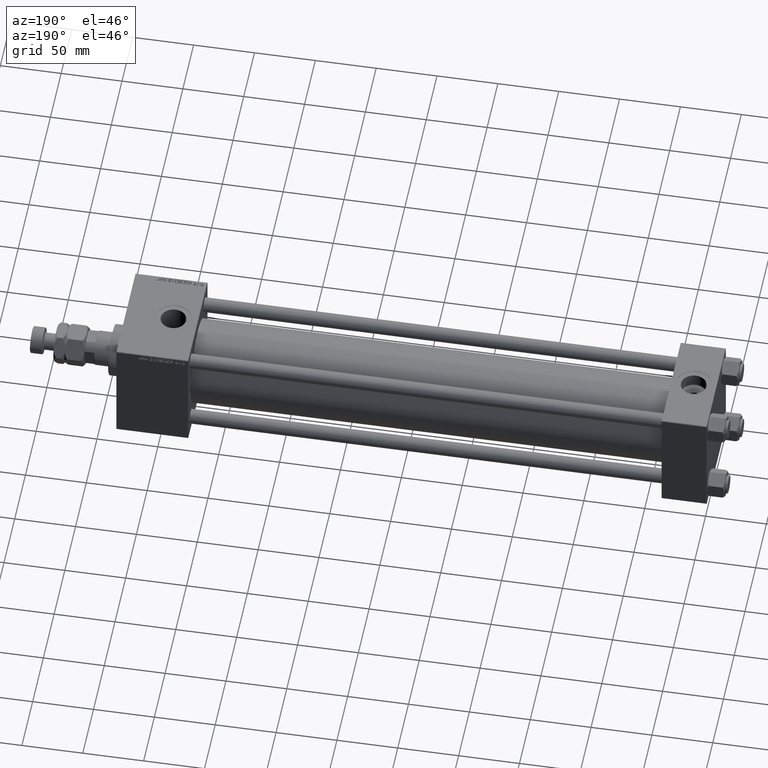
[diagram: clean part render]
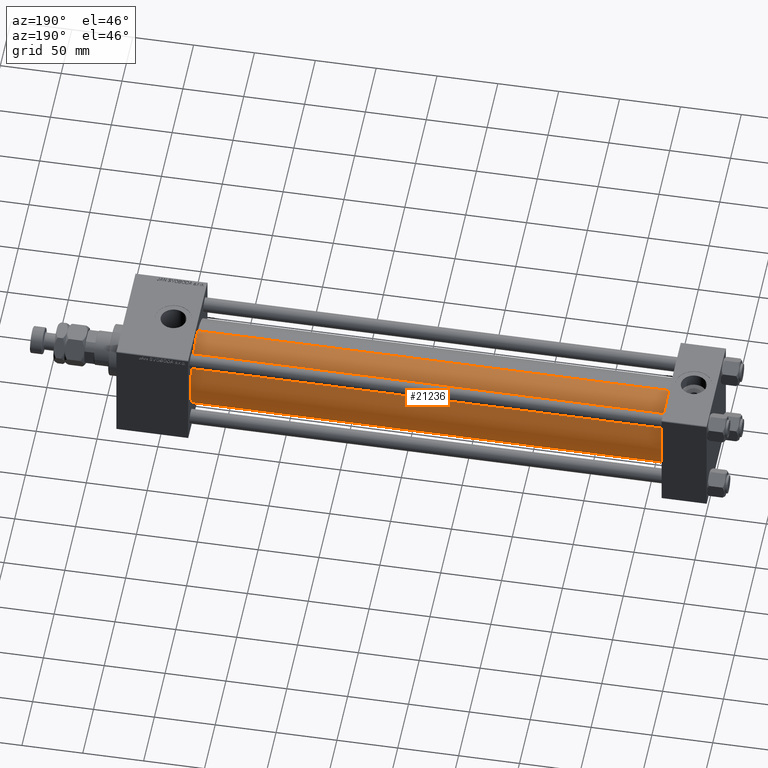
[diagram: same view with one face highlighted and labeled with its STEP entity id]
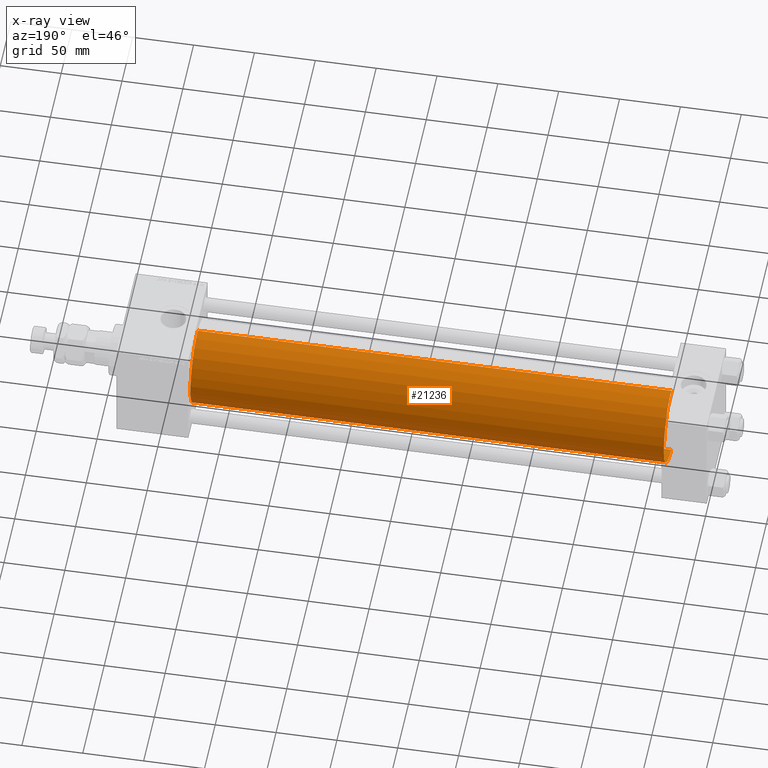
[diagram: x-ray of the same camera — body ghosted, the highlighted face saturated]
A machine part, auxiliary view. The second image highlights one B-rep face of the part: STEP entity #21236.
The next image is the same camera in x-ray: the body ghosted, the highlighted face saturated — about 0% of this face is hidden behind the body in this view.
In plain terms, the highlighted cylindrical surface (partial cylindrical patch) has radius 34.5 mm, axis along (-1, -0, -0).
Its self-contained STEP definition (entity closure, byte-faithful):
#88 = EDGE_LOOP ( 'NONE', ( #19770, #7104, #20342, #10465 ) ) ;
#422 = VERTEX_POINT ( 'NONE', #41417 ) ;
#2168 = VERTEX_POINT ( 'NONE', #5975 ) ;
#5284 = CIRCLE ( 'NONE', #25413, 34.50000000000000000 ) ;
#5975 = CARTESIAN_POINT ( 'NONE',  ( 36.99999999999997868, 1.622946243093158675E-15, -34.50000000000000000 ) ) ;
#7059 = FACE_OUTER_BOUND ( 'NONE', #88, .T. ) ;
#7104 = ORIENTED_EDGE ( 'NONE', *, *, #25317, .T. ) ;
#8199 = CARTESIAN_POINT ( 'NONE',  ( 36.99999999999997868, -2.602085213965210642E-15, 0.000000000000000000 ) ) ;
#8341 = VECTOR ( 'NONE', #40822, 1000.000000000000000 ) ;
#8732 = EDGE_CURVE ( 'NONE', #21062, #422, #5284, .T. ) ;
#10465 = ORIENTED_EDGE ( 'NONE', *, *, #25423, .F. ) ;
#10747 = CYLINDRICAL_SURFACE ( 'NONE', #47579, 34.50000000000000000 ) ;
#14698 = CARTESIAN_POINT ( 'NONE',  ( 426.0000000000000000, -2.602085213965210642E-15, 0.000000000000000000 ) ) ;
#15724 = CARTESIAN_POINT ( 'NONE',  ( 36.99999999999997868, -2.602085213965210642E-15, 34.50000000000000000 ) ) ;
#19140 = DIRECTION ( 'NONE',  ( 0.000000000000000000, 0.000000000000000000, -1.000000000000000000 ) ) ;
#19415 = DIRECTION ( 'NONE',  ( -1.000000000000000000, -0.000000000000000000, -0.000000000000000000 ) ) ;
#19770 = ORIENTED_EDGE ( 'NONE', *, *, #8732, .F. ) ;
#20342 = ORIENTED_EDGE ( 'NONE', *, *, #31171, .T. ) ;
#21062 = VERTEX_POINT ( 'NONE', #36804 ) ;
#21236 = ADVANCED_FACE ( 'NONE', ( #7059 ), #10747, .T. ) ;
#23733 = DIRECTION ( 'NONE',  ( 0.000000000000000000, 0.000000000000000000, 1.000000000000000000 ) ) ;
#24004 = LINE ( 'NONE', #44263, #8341 ) ;
#25317 = EDGE_CURVE ( 'NONE', #21062, #2168, #29544, .T. ) ;
#25413 = AXIS2_PLACEMENT_3D ( 'NONE', #32005, #31495, #19140 ) ;
#25423 = EDGE_CURVE ( 'NONE', #422, #35891, #24004, .T. ) ;
#27046 = DIRECTION ( 'NONE',  ( 0.000000000000000000, 0.000000000000000000, 1.000000000000000000 ) ) ;
#29283 = CARTESIAN_POINT ( 'NONE',  ( 426.0000000000000000, 1.622946243093158675E-15, -34.50000000000000000 ) ) ;
#29544 = LINE ( 'NONE', #29283, #47820 ) ;
#31171 = EDGE_CURVE ( 'NONE', #2168, #35891, #41087, .T. ) ;
#31495 = DIRECTION ( 'NONE',  ( 1.000000000000000000, 0.000000000000000000, 0.000000000000000000 ) ) ;
#32005 = CARTESIAN_POINT ( 'NONE',  ( 426.0000000000000000, -2.602085213965210642E-15, 0.000000000000000000 ) ) ;
#35891 = VERTEX_POINT ( 'NONE', #15724 ) ;
#36804 = CARTESIAN_POINT ( 'NONE',  ( 426.0000000000000000, 1.622946243093158675E-15, -34.50000000000000000 ) ) ;
#37727 = AXIS2_PLACEMENT_3D ( 'NONE', #8199, #39513, #23733 ) ;
#39513 = DIRECTION ( 'NONE',  ( 1.000000000000000000, -0.000000000000000000, 0.000000000000000000 ) ) ;
#40822 = DIRECTION ( 'NONE',  ( -1.000000000000000000, -0.000000000000000000, -0.000000000000000000 ) ) ;
#41087 = CIRCLE ( 'NONE', #37727, 34.50000000000000000 ) ;
#41417 = CARTESIAN_POINT ( 'NONE',  ( 426.0000000000000000, -2.602085213965210642E-15, 34.50000000000000000 ) ) ;
#44263 = CARTESIAN_POINT ( 'NONE',  ( 426.0000000000000000, -2.602085213965210642E-15, 34.50000000000000000 ) ) ;
#45365 = DIRECTION ( 'NONE',  ( -1.000000000000000000, -0.000000000000000000, -0.000000000000000000 ) ) ;
#47579 = AXIS2_PLACEMENT_3D ( 'NONE', #14698, #19415, #27046 ) ;
#47820 = VECTOR ( 'NONE', #45365, 1000.000000000000000 ) ;